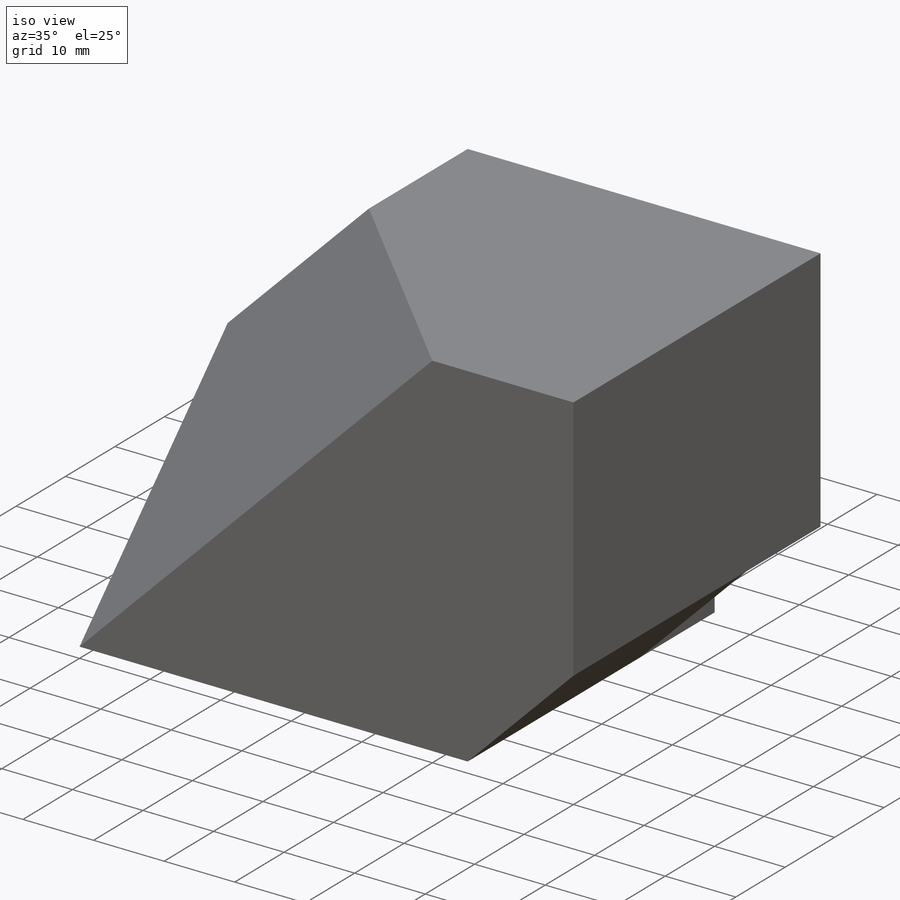
[diagram: iso view]
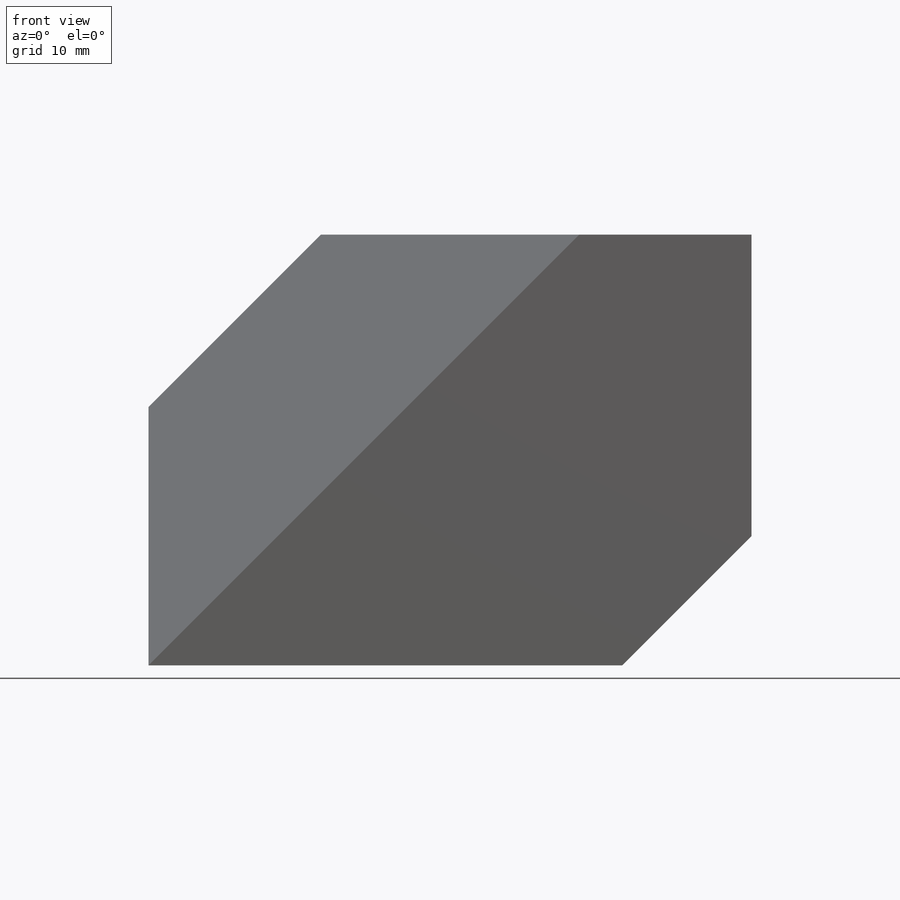
[diagram: front view]
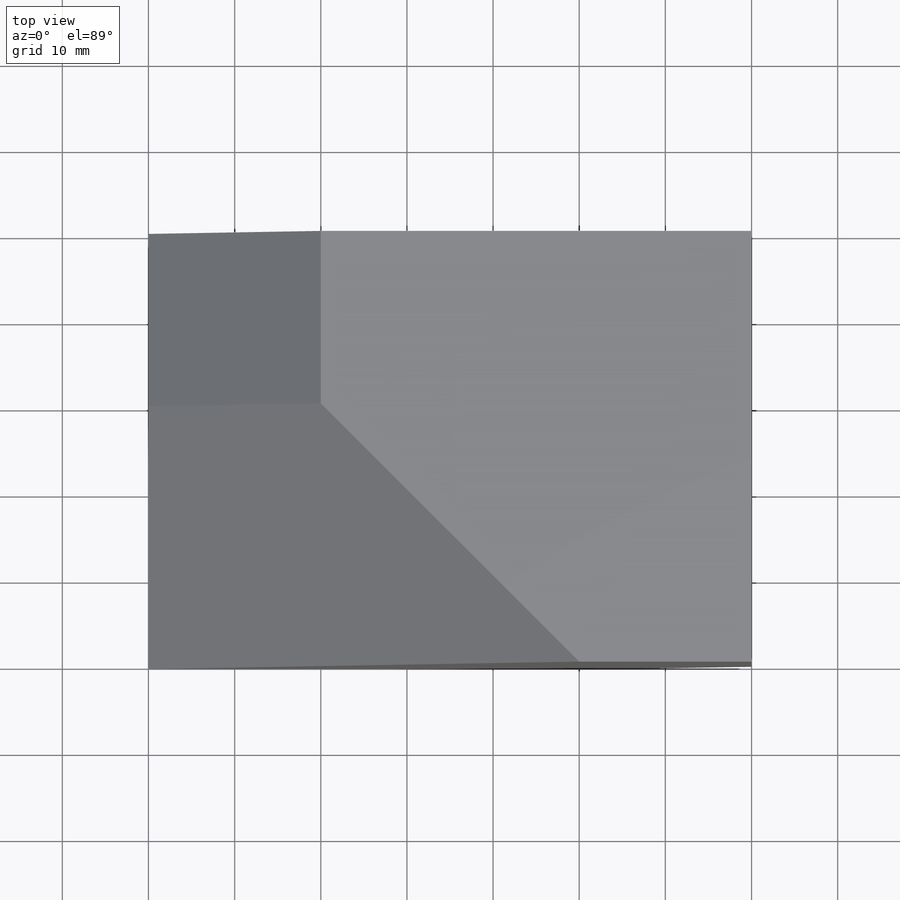
[diagram: top view]
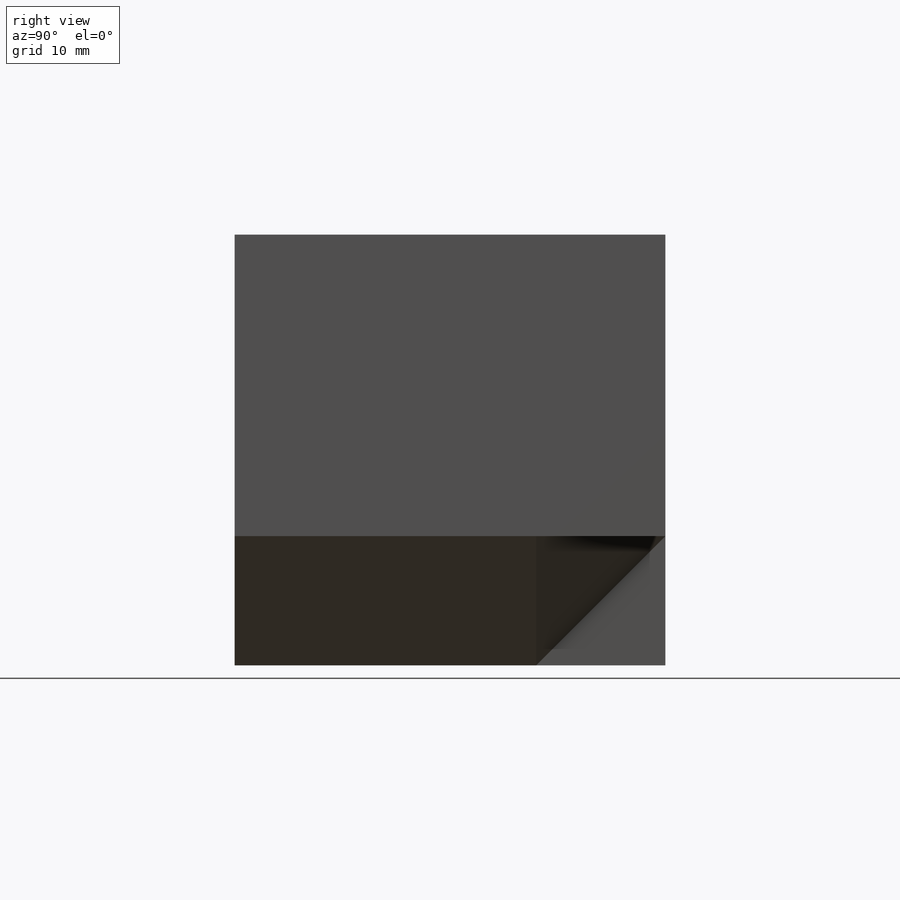
[diagram: right view]
SOLIDWORKS PART (.sldprt)
format: sldprt  version: not decoded by parser v0  size: 236,544 bytes
history: native  units: mm
features: sketch x11, extrude x6, cut_extrude x5, plane x3, material x1 (+13 scaffold rows collapsed)
feature tree (39):
  scaffold x13  (default folders/planes/origin — collapsed)
  material  "Material <not specified>"
  sketch  "Sketch1"  dims[D1=55.0mm D2=15.0mm D3=15.0mm D4=35.0mm D5=50.0mm D6=20.0mm D7=30.0mm]
  extrude  "Boss-Extrude1"  Depth=50mm
  sketch  "Sketch2"  dims[D1=20.0mm]
  cut_extrude  "Cut-Extrude2"  Depth=30mm
  sketch  "Sketch4"  dims[D1=15.0mm D2=15.0mm D3=~21.213203mm]
  cut_extrude  "Cut-Extrude3"  Depth=15mm
  plane  "Plane2"
  sketch  "Sketch7"  dims[D1=~21.213203mm]
  extrude  "Boss-Extrude4"  Depth=15mm
  sketch  "Sketch11"  dims[D1=30.0mm D2=30.0mm]
  extrude  "Boss-Extrude6"  Depth=52mm
  sketch  "Sketch12"  dims[D1=30.0mm]
  extrude  "Boss-Extrude7"  Depth=52mm
  sketch  "Sketch13"  dims[D1=~42.426407mm]
  cut_extrude  "Cut-Extrude6"  Depth=52mm
  plane  "Plane4"
  sketch  "Sketch14"  dims[D1=~61.64414mm]
  extrude  "Boss-Extrude8"  Depth=30mm
  plane  "Plane5"
  sketch  "Sketch15"  dims[D1=~42.426407mm]
  extrude  "Boss-Extrude9"  Depth=15mm
  sketch  "Sketch16"  dims[D1=~19.364917mm]
  cut_extrude  "Cut-Extrude7"  Depth=15mm
  sketch  "Sketch17"  dims[D1=20.0mm D2=20.0mm]
  cut_extrude  "Cut-Extrude8"  Depth=15mm
decode coverage: 22 of 22 modeling features carry decoded parameters
note: ~ marks probable driven/reference dimensions
note: suppression state not decoded; provenance and decode notes live in map.json
